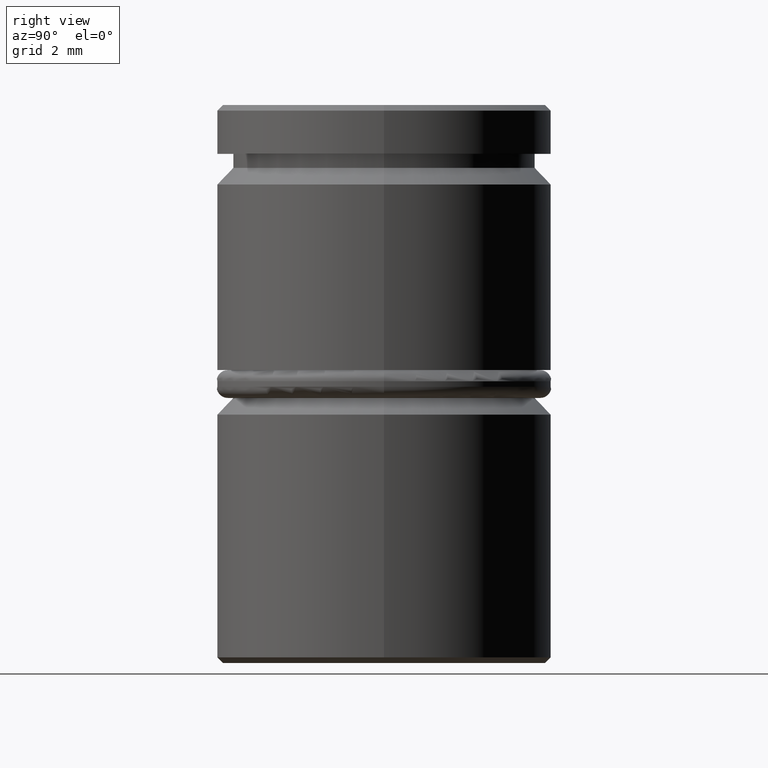
[diagram: clean part render]
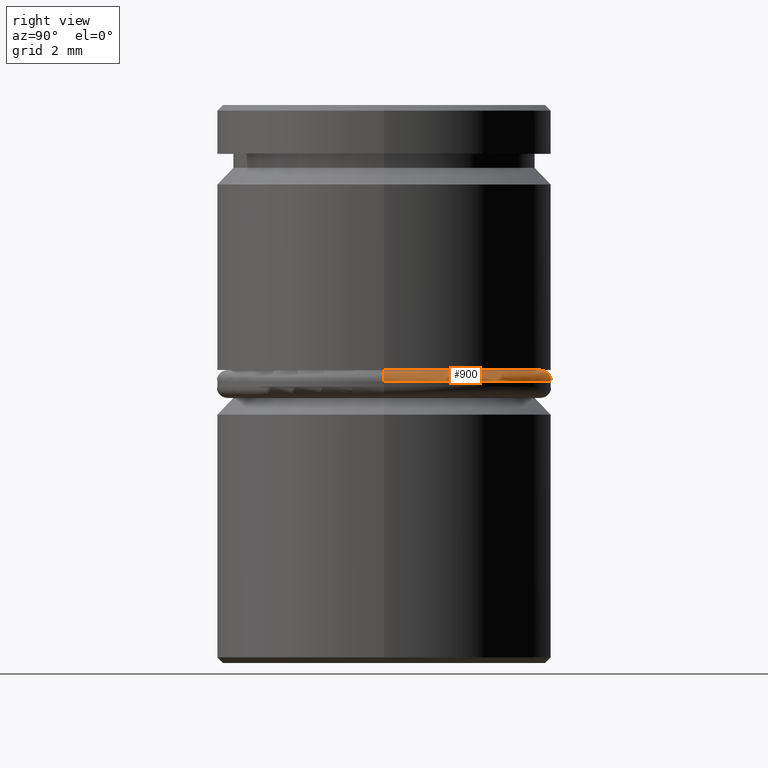
[diagram: same view with one face highlighted and labeled with its STEP entity id]
A machine part, right view. The second image highlights one B-rep face of the part: STEP entity #900.
In plain terms, the highlighted toroidal blend (fillet) surface has major radius 2.8 mm and minor (blend) radius 0.2 mm.
Its self-contained STEP definition (entity closure, byte-faithful):
#66 = DIRECTION ( 'NONE',  ( -0.000000000000000000, -1.000000000000000000, -0.000000000000000000 ) ) ;
#100 = AXIS2_PLACEMENT_3D ( 'NONE', #1167, #66, #685 ) ;
#107 = CARTESIAN_POINT ( 'NONE',  ( 0.000000000000000000, 0.000000000000000000, -4.949999999999997513 ) ) ;
#112 = DIRECTION ( 'NONE',  ( 0.000000000000000000, 0.000000000000000000, -1.000000000000000000 ) ) ;
#123 = DIRECTION ( 'NONE',  ( -1.000000000000000000, 0.000000000000000000, 0.000000000000000000 ) ) ;
#152 = VERTEX_POINT ( 'NONE', #1170 ) ;
#177 = CIRCLE ( 'NONE', #100, 0.1999999999999996503 ) ;
#228 = AXIS2_PLACEMENT_3D ( 'NONE', #308, #935, #123 ) ;
#308 = CARTESIAN_POINT ( 'NONE',  ( 0.000000000000000000, 0.000000000000000000, -4.749999999999999112 ) ) ;
#317 = CARTESIAN_POINT ( 'NONE',  ( 0.000000000000000000, 0.000000000000000000, -4.949999999999997513 ) ) ;
#330 = DIRECTION ( 'NONE',  ( -1.000000000000000000, -1.224646799147353207E-16, 0.000000000000000000 ) ) ;
#347 = AXIS2_PLACEMENT_3D ( 'NONE', #317, #954, #655 ) ;
#384 = ORIENTED_EDGE ( 'NONE', *, *, #717, .T. ) ;
#451 = AXIS2_PLACEMENT_3D ( 'NONE', #107, #112, #1115 ) ;
#507 = DIRECTION ( 'NONE',  ( -1.224646799147353207E-16, 1.000000000000000000, 0.000000000000000000 ) ) ;
#525 = EDGE_CURVE ( 'NONE', #675, #528, #947, .T. ) ;
#528 = VERTEX_POINT ( 'NONE', #1020 ) ;
#551 = ORIENTED_EDGE ( 'NONE', *, *, #525, .F. ) ;
#562 = EDGE_LOOP ( 'NONE', ( #1009, #384, #551, #887 ) ) ;
#602 = EDGE_CURVE ( 'NONE', #858, #152, #1100, .T. ) ;
#651 = AXIS2_PLACEMENT_3D ( 'NONE', #971, #507, #330 ) ;
#655 = DIRECTION ( 'NONE',  ( -1.000000000000000000, 0.000000000000000000, 0.000000000000000000 ) ) ;
#675 = VERTEX_POINT ( 'NONE', #1050 ) ;
#685 = DIRECTION ( 'NONE',  ( 0.000000000000000000, 0.000000000000000000, -1.000000000000000000 ) ) ;
#717 = EDGE_CURVE ( 'NONE', #858, #528, #803, .T. ) ;
#803 = CIRCLE ( 'NONE', #651, 0.2000000000000000944 ) ;
#824 = CARTESIAN_POINT ( 'NONE',  ( 2.800000000000000266, 3.551475717527324325E-16, -4.749999999999999112 ) ) ;
#858 = VERTEX_POINT ( 'NONE', #824 ) ;
#861 = FACE_OUTER_BOUND ( 'NONE', #562, .T. ) ;
#887 = ORIENTED_EDGE ( 'NONE', *, *, #1105, .F. ) ;
#900 = ADVANCED_FACE ( 'NONE', ( #861 ), #1121, .T. ) ;
#935 = DIRECTION ( 'NONE',  ( -0.000000000000000000, -0.000000000000000000, 1.000000000000000000 ) ) ;
#947 = CIRCLE ( 'NONE', #451, 3.000000000000000444 ) ;
#954 = DIRECTION ( 'NONE',  ( 0.000000000000000000, 0.000000000000000000, -1.000000000000000000 ) ) ;
#971 = CARTESIAN_POINT ( 'NONE',  ( 2.800000000000000266, 3.429011037612589276E-16, -4.949999999999997513 ) ) ;
#1009 = ORIENTED_EDGE ( 'NONE', *, *, #602, .F. ) ;
#1020 = CARTESIAN_POINT ( 'NONE',  ( 3.000000000000000444, 0.000000000000000000, -4.949999999999997513 ) ) ;
#1050 = CARTESIAN_POINT ( 'NONE',  ( -3.000000000000000444, 3.673940397442060361E-16, -4.949999999999997513 ) ) ;
#1100 = CIRCLE ( 'NONE', #228, 2.800000000000000266 ) ;
#1105 = EDGE_CURVE ( 'NONE', #152, #675, #177, .T. ) ;
#1115 = DIRECTION ( 'NONE',  ( -1.000000000000000000, 0.000000000000000000, 0.000000000000000000 ) ) ;
#1121 = TOROIDAL_SURFACE ( 'NONE', #347, 2.800000000000000266, 0.2000000000000000111 ) ;
#1167 = CARTESIAN_POINT ( 'NONE',  ( -2.800000000000000266, 0.000000000000000000, -4.949999999999997513 ) ) ;
#1170 = CARTESIAN_POINT ( 'NONE',  ( -2.800000000000000266, 0.000000000000000000, -4.749999999999999112 ) ) ;